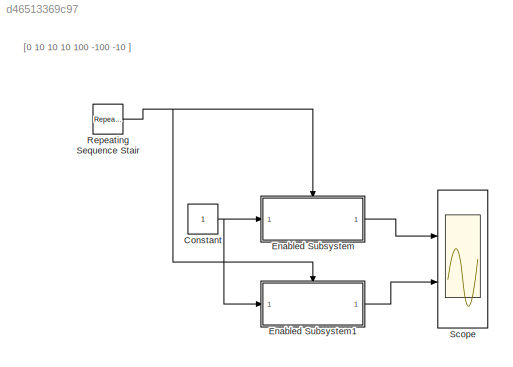
MODEL slx_d46513369c97
KIND model
CONFIG AbsTol = auto
CONFIG EnableMultiTasking = off
CONFIG FixedStep = auto
CONFIG MaxStep = auto
CONFIG MinStep = auto
CONFIG RelTol = 1e-3
CONFIG SampleTimeConstraint = Unconstrained
CONFIG Solver = VariableStepAuto
CONFIG SolverName = VariableStepAuto
CONFIG StartTime = 0.0
CONFIG StopTime = 10.0
BLOCK [Constant] Constant
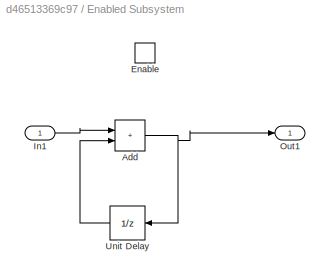
BLOCK [SubSystem] Enabled Subsystem
  Ports = [1, 1, 1]
  RequestExecContextInheritance = off
  TreatAsAtomicUnit = on
BLOCK [Sum] Enabled Subsystem/Add
  IconShape = rectangular
  Ports = [2, 1]
BLOCK [EnablePort] Enabled Subsystem/Enable
  Ports = []
BLOCK [Inport] Enabled Subsystem/In1
BLOCK [Outport] Enabled Subsystem/Out1
BLOCK [UnitDelay] Enabled Subsystem/Unit Delay
  HasFrameUpgradeWarning = on
  InitialCondition = 2
  NameLocation = top
  SampleTime = -1
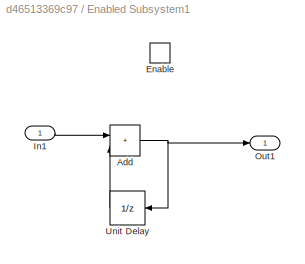
BLOCK [SubSystem] Enabled Subsystem1
  Ports = [1, 1, 1]
  RequestExecContextInheritance = off
  TreatAsAtomicUnit = on
BLOCK [Sum] Enabled Subsystem1/Add
  IconShape = rectangular
  Ports = [2, 1]
BLOCK [EnablePort] Enabled Subsystem1/Enable
  Ports = []
  StatesWhenEnabling = reset
BLOCK [Inport] Enabled Subsystem1/In1
BLOCK [Outport] Enabled Subsystem1/Out1
BLOCK [UnitDelay] Enabled Subsystem1/Unit Delay
  HasFrameUpgradeWarning = on
  InitialCondition = 2
  NameLocation = top
  SampleTime = -1
BLOCK [Reference] Repeating Sequence Stair  REF=simulink/Sources/Repeating
Sequence
Stair
  Ports = [0, 1]
  SourceBlock = simulink/Sources/Repeating\nSequence\nStair
  SourceProductBaseCode = SL
  SourceType = Repeating Sequence Stair
BLOCK [Scope] Scope
  Floating = off
  NumInputPorts = 2
  Ports = [2]
  ScopeSpecificationString = Simulink.scopes.TimeScopeBlockCfg('CurrentConfiguration', extmgr.ConfigurationSet(extmgr.Configuration('Core','General UI',true),extmgr.Configuration('Core','Source UI',true),extmgr.Configuration('Sources','WiredSimulink',true),extmgr.Configuration('Visuals','Time Domain',true,'SerializedDisplays',{struct('MinYLimReal','-0.5','MaxYLimReal','4.5','YLabelReal','','MinYLimMag','0.00000','MaxYLimMag',...<+1986ch>
ANNOTATION (root): [0 10 10 10 100 -100 -10 ]
NET Constant:1 -> Enabled Subsystem1:1, Enabled Subsystem:1
NET Enabled Subsystem/Add:1 -> Enabled Subsystem/Out1:1, Enabled Subsystem/Unit Delay:1
LINE Enabled Subsystem/In1:1 -> Enabled Subsystem/Add:1
LINE Enabled Subsystem/Unit Delay:1 -> Enabled Subsystem/Add:2
NET Enabled Subsystem1/Add:1 -> Enabled Subsystem1/Out1:1, Enabled Subsystem1/Unit Delay:1
LINE Enabled Subsystem1/In1:1 -> Enabled Subsystem1/Add:1
LINE Enabled Subsystem1/Unit Delay:1 -> Enabled Subsystem1/Add:2
LINE Enabled Subsystem1:1 -> Scope:2
LINE Enabled Subsystem:1 -> Scope:1
NET Repeating Sequence Stair:1 -> Enabled Subsystem1:enable, Enabled Subsystem:enable
note: NET lines group one-source signal fan-out (src -> all destinations, sorted); 1:1 wires keep LINE
